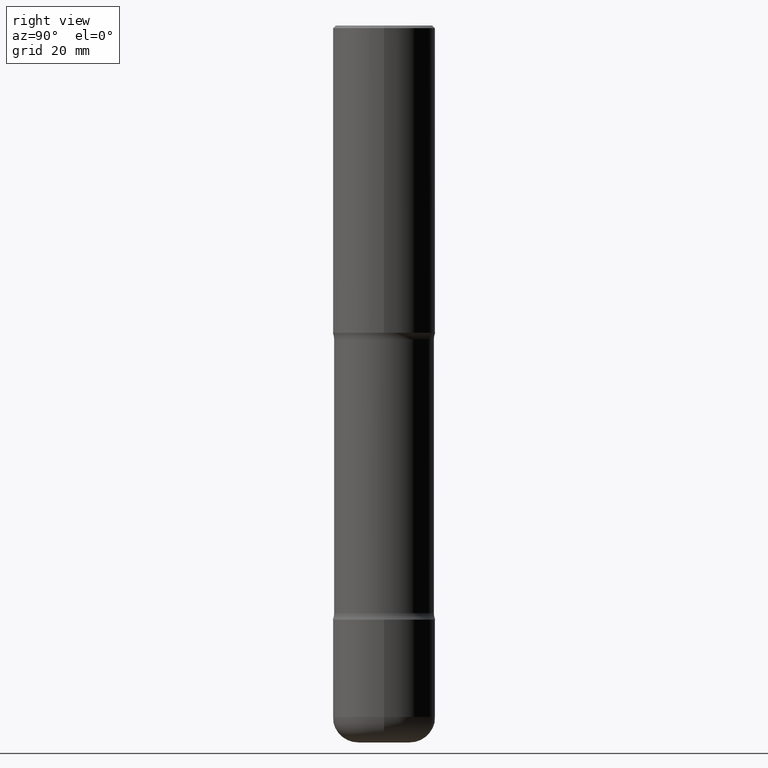
[diagram: clean part render]
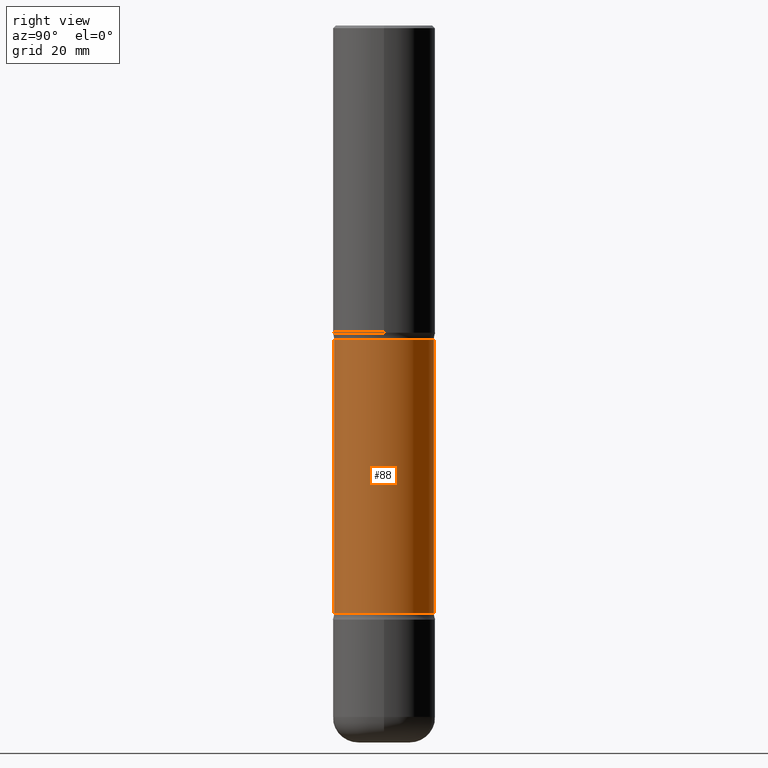
[diagram: same view with one face highlighted and labeled with its STEP entity id]
A machine part, right view. The second image highlights one B-rep face of the part: STEP entity #88.
In plain terms, the highlighted cylindrical surface (partial cylindrical patch) has radius 9.7409 mm, axis along (0, -0, -1).
Its self-contained STEP definition (entity closure, byte-faithful):
#17 = AXIS2_PLACEMENT_3D ( 'NONE', #89, #44, #476 ) ;
#43 = CARTESIAN_POINT ( 'NONE',  ( -2.631000982145247058E-15, -0.3835000000000192699, -5.511799999999999145 ) ) ;
#44 = DIRECTION ( 'NONE',  ( 2.551873980375737716E-29, -3.339103073195795043E-15, -1.000000000000000000 ) ) ;
#52 = CARTESIAN_POINT ( 'NONE',  ( 1.357947721502393649E-28, -1.910036462022546845E-14, -5.511800000000000033 ) ) ;
#70 = ORIENTED_EDGE ( 'NONE', *, *, #139, .T. ) ;
#77 = VECTOR ( 'NONE', #437, 39.37007874015748143 ) ;
#88 = ADVANCED_FACE ( 'NONE', ( #538 ), #421, .T. ) ;
#89 = CARTESIAN_POINT ( 'NONE',  ( 5.668302058810330557E-29, -8.748666425154899227E-15, -2.411656647682593135 ) ) ;
#106 = DIRECTION ( 'NONE',  ( 2.551873980375737716E-29, -3.339103073195795043E-15, -1.000000000000000000 ) ) ;
#122 = VECTOR ( 'NONE', #534, 39.37007874015748143 ) ;
#139 = EDGE_CURVE ( 'NONE', #258, #402, #397, .T. ) ;
#150 = CARTESIAN_POINT ( 'NONE',  ( 1.104200435858908498E-28, -1.578010528209585513E-14, -4.517443352317408234 ) ) ;
#154 = ORIENTED_EDGE ( 'NONE', *, *, #278, .F. ) ;
#167 = CIRCLE ( 'NONE', #17, 0.3835000000000002851 ) ;
#170 = LINE ( 'NONE', #229, #122 ) ;
#208 = VERTEX_POINT ( 'NONE', #447 ) ;
#217 = CARTESIAN_POINT ( 'NONE',  ( -2.665989521933906951E-15, -0.3835000000000157727, -4.517443352317407346 ) ) ;
#229 = CARTESIAN_POINT ( 'NONE',  ( 2.677966186892819583E-15, 0.3834999999999810227, -5.511800000000000921 ) ) ;
#245 = DIRECTION ( 'NONE',  ( 6.982962677686265922E-15, 1.000000000000000000, -2.849385130288670661E-15 ) ) ;
#250 = AXIS2_PLACEMENT_3D ( 'NONE', #150, #322, #245 ) ;
#258 = VERTEX_POINT ( 'NONE', #279 ) ;
#278 = EDGE_CURVE ( 'NONE', #208, #376, #170, .T. ) ;
#279 = CARTESIAN_POINT ( 'NONE',  ( -2.665989521933964538E-15, -0.3835000000000090559, -2.411656647682591803 ) ) ;
#295 = EDGE_CURVE ( 'NONE', #376, #402, #336, .T. ) ;
#317 = AXIS2_PLACEMENT_3D ( 'NONE', #52, #106, #394 ) ;
#322 = DIRECTION ( 'NONE',  ( 2.551873980375737716E-29, -3.339103073195795043E-15, -1.000000000000000000 ) ) ;
#336 = CIRCLE ( 'NONE', #250, 0.3835000000000000075 ) ;
#376 = VERTEX_POINT ( 'NONE', #511 ) ;
#390 = EDGE_CURVE ( 'NONE', #208, #258, #167, .T. ) ;
#394 = DIRECTION ( 'NONE',  ( 6.982962677686265133E-15, 1.000000000000000000, -2.849385130288669478E-15 ) ) ;
#397 = LINE ( 'NONE', #43, #77 ) ;
#402 = VERTEX_POINT ( 'NONE', #217 ) ;
#421 = CYLINDRICAL_SURFACE ( 'NONE', #317, 0.3835000000000001741 ) ;
#435 = ORIENTED_EDGE ( 'NONE', *, *, #295, .F. ) ;
#437 = DIRECTION ( 'NONE',  ( 2.551873980375737716E-29, -3.339103073195795043E-15, -1.000000000000000000 ) ) ;
#447 = CARTESIAN_POINT ( 'NONE',  ( 2.677966186892741486E-15, 0.3834999999999915699, -2.411656647682594468 ) ) ;
#449 = ORIENTED_EDGE ( 'NONE', *, *, #390, .T. ) ;
#476 = DIRECTION ( 'NONE',  ( 6.982962677686265133E-15, 1.000000000000000000, -3.561731412860835763E-15 ) ) ;
#511 = CARTESIAN_POINT ( 'NONE',  ( 2.677966186892793550E-15, 0.3834999999999842424, -4.517443352317409122 ) ) ;
#534 = DIRECTION ( 'NONE',  ( 2.551873980375737716E-29, -3.339103073195795043E-15, -1.000000000000000000 ) ) ;
#538 = FACE_OUTER_BOUND ( 'NONE', #551, .T. ) ;
#551 = EDGE_LOOP ( 'NONE', ( #449, #70, #435, #154 ) ) ;